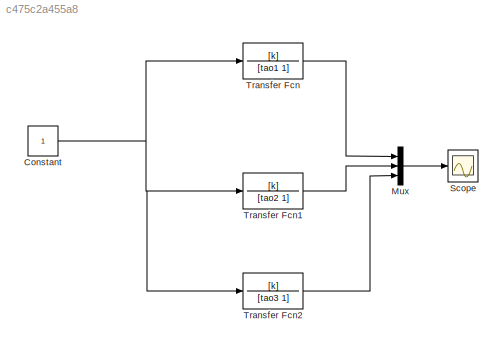
MODEL slx_c475c2a455a8
KIND model
BLOCK [Constant] Constant
BLOCK [Mux] Mux
  DisplayOption = bar
  Inputs = 3
  Ports = [3, 1]
BLOCK [Scope] Scope
  DataFormat = StructureWithTime
  Floating = off
  NumInputPorts = 1
  Ports = [1]
  SampleTime = 0
  ShowLegends = off
BLOCK [TransferFcn] Transfer Fcn
  Denominator = [tao1 1]
  Numerator = [k]
BLOCK [TransferFcn] Transfer Fcn1
  Denominator = [tao2 1]
  Numerator = [k]
BLOCK [TransferFcn] Transfer Fcn2
  Denominator = [tao3 1]
  Numerator = [k]
NET Constant:1 -> Transfer Fcn1:1, Transfer Fcn2:1, Transfer Fcn:1
LINE Mux:1 -> Scope:1
LINE Transfer Fcn1:1 -> Mux:2
LINE Transfer Fcn2:1 -> Mux:3
LINE Transfer Fcn:1 -> Mux:1
note: NET lines group one-source signal fan-out (src -> all destinations, sorted); 1:1 wires keep LINE
